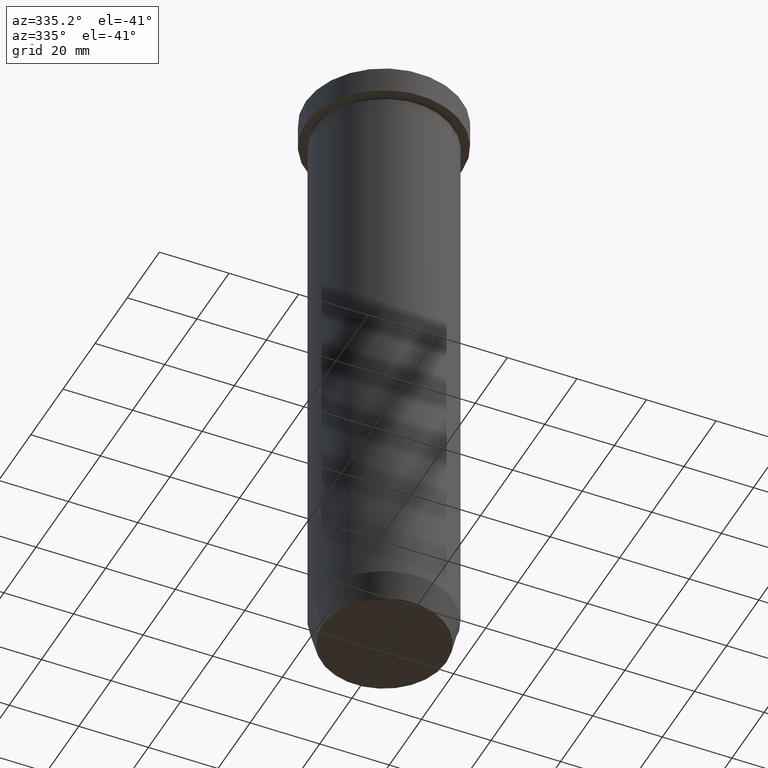
[diagram: clean part render]
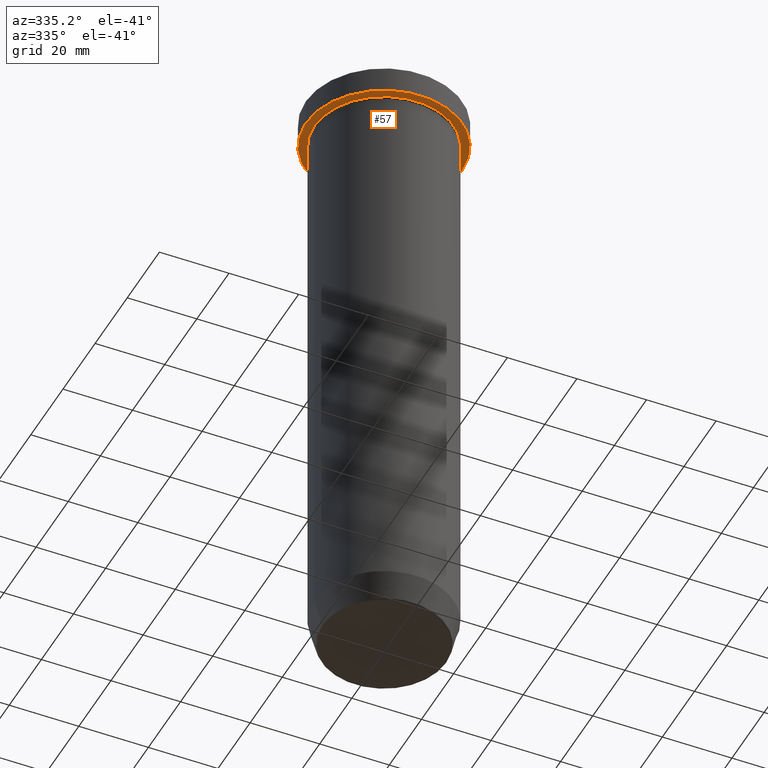
[diagram: same view with one face highlighted and labeled with its STEP entity id]
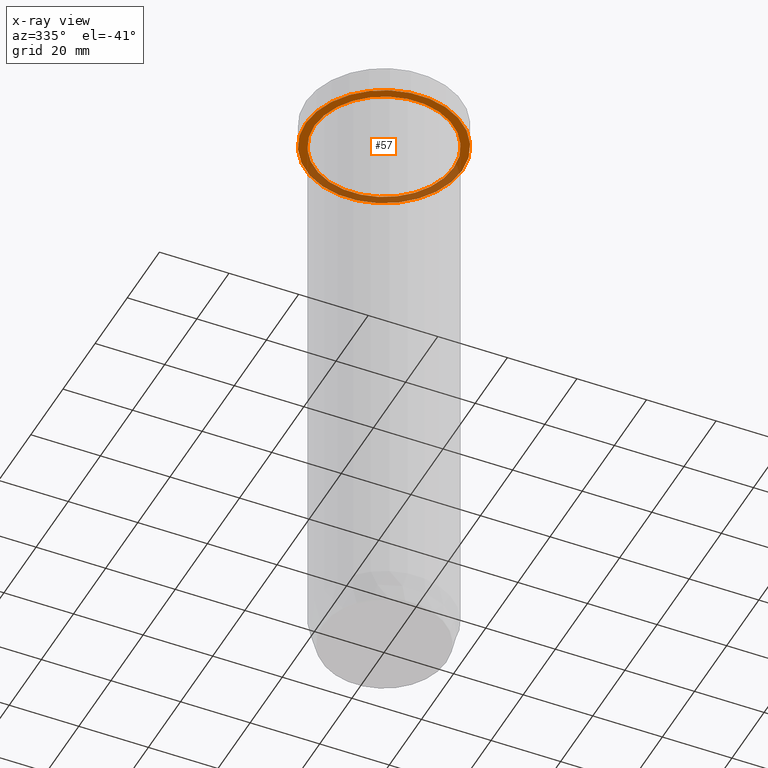
[diagram: x-ray of the same camera — body ghosted, the highlighted face saturated]
A machine part, auxiliary view. The second image highlights one B-rep face of the part: STEP entity #57.
The next image is the same camera in x-ray: the body ghosted, the highlighted face saturated — about 37% of this face is hidden behind the body in this view.
In plain terms, the highlighted planar face has unit normal (0, 0, -1).
Its self-contained STEP definition (entity closure, byte-faithful):
#57 = ADVANCED_FACE ( 'NONE', ( #574, #154 ), #581, .T. ) ;
#73 = AXIS2_PLACEMENT_3D ( 'NONE', #222, #595, #398 ) ;
#80 = DIRECTION ( 'NONE',  ( -1.000000000000000000, 0.000000000000000000, 0.000000000000000000 ) ) ;
#93 = EDGE_LOOP ( 'NONE', ( #282, #264 ) ) ;
#102 = VERTEX_POINT ( 'NONE', #448 ) ;
#122 = DIRECTION ( 'NONE',  ( -1.000000000000000000, 0.000000000000000000, -0.000000000000000000 ) ) ;
#153 = EDGE_CURVE ( 'NONE', #296, #102, #439, .T. ) ;
#154 = FACE_OUTER_BOUND ( 'NONE', #420, .T. ) ;
#161 = CARTESIAN_POINT ( 'NONE',  ( 0.000000000000000000, 22.50000000000000000, -7.999999999999998224 ) ) ;
#181 = EDGE_CURVE ( 'NONE', #238, #316, #586, .T. ) ;
#219 = EDGE_CURVE ( 'NONE', #316, #238, #412, .T. ) ;
#222 = CARTESIAN_POINT ( 'NONE',  ( 0.000000000000000000, 0.000000000000000000, -7.999999999999998224 ) ) ;
#225 = DIRECTION ( 'NONE',  ( -0.000000000000000000, -0.000000000000000000, 1.000000000000000000 ) ) ;
#226 = CARTESIAN_POINT ( 'NONE',  ( 0.000000000000000000, 0.000000000000000000, -7.999999999999998224 ) ) ;
#238 = VERTEX_POINT ( 'NONE', #451 ) ;
#246 = AXIS2_PLACEMENT_3D ( 'NONE', #504, #366, #80 ) ;
#264 = ORIENTED_EDGE ( 'NONE', *, *, #219, .T. ) ;
#267 = AXIS2_PLACEMENT_3D ( 'NONE', #410, #225, #584 ) ;
#282 = ORIENTED_EDGE ( 'NONE', *, *, #181, .T. ) ;
#296 = VERTEX_POINT ( 'NONE', #414 ) ;
#306 = ORIENTED_EDGE ( 'NONE', *, *, #587, .F. ) ;
#316 = VERTEX_POINT ( 'NONE', #564 ) ;
#328 = AXIS2_PLACEMENT_3D ( 'NONE', #226, #363, #458 ) ;
#345 = DIRECTION ( 'NONE',  ( 0.000000000000000000, 0.000000000000000000, -1.000000000000000000 ) ) ;
#363 = DIRECTION ( 'NONE',  ( -0.000000000000000000, -0.000000000000000000, 1.000000000000000000 ) ) ;
#366 = DIRECTION ( 'NONE',  ( -0.000000000000000000, -0.000000000000000000, 1.000000000000000000 ) ) ;
#369 = AXIS2_PLACEMENT_3D ( 'NONE', #161, #345, #122 ) ;
#373 = CIRCLE ( 'NONE', #267, 22.50000000000000000 ) ;
#392 = ORIENTED_EDGE ( 'NONE', *, *, #153, .F. ) ;
#398 = DIRECTION ( 'NONE',  ( -1.000000000000000000, 0.000000000000000000, 0.000000000000000000 ) ) ;
#410 = CARTESIAN_POINT ( 'NONE',  ( 0.000000000000000000, 0.000000000000000000, -7.999999999999998224 ) ) ;
#412 = CIRCLE ( 'NONE', #246, 20.00000000000000000 ) ;
#414 = CARTESIAN_POINT ( 'NONE',  ( 22.50000000000000000, 0.000000000000000000, -7.999999999999998224 ) ) ;
#420 = EDGE_LOOP ( 'NONE', ( #392, #306 ) ) ;
#439 = CIRCLE ( 'NONE', #328, 22.50000000000000000 ) ;
#448 = CARTESIAN_POINT ( 'NONE',  ( -22.50000000000000000, 2.755455298081544778E-15, -7.999999999999998224 ) ) ;
#451 = CARTESIAN_POINT ( 'NONE',  ( -20.00000000000000000, 0.000000000000000000, -7.999999999999998224 ) ) ;
#458 = DIRECTION ( 'NONE',  ( 1.000000000000000000, 0.000000000000000000, 0.000000000000000000 ) ) ;
#504 = CARTESIAN_POINT ( 'NONE',  ( 0.000000000000000000, 0.000000000000000000, -7.999999999999998224 ) ) ;
#564 = CARTESIAN_POINT ( 'NONE',  ( 20.00000000000000000, 2.449293598294706513E-15, -7.999999999999998224 ) ) ;
#574 = FACE_BOUND ( 'NONE', #93, .T. ) ;
#581 = PLANE ( 'NONE',  #369 ) ;
#584 = DIRECTION ( 'NONE',  ( 1.000000000000000000, 0.000000000000000000, 0.000000000000000000 ) ) ;
#586 = CIRCLE ( 'NONE', #73, 20.00000000000000000 ) ;
#587 = EDGE_CURVE ( 'NONE', #102, #296, #373, .T. ) ;
#595 = DIRECTION ( 'NONE',  ( -0.000000000000000000, -0.000000000000000000, 1.000000000000000000 ) ) ;